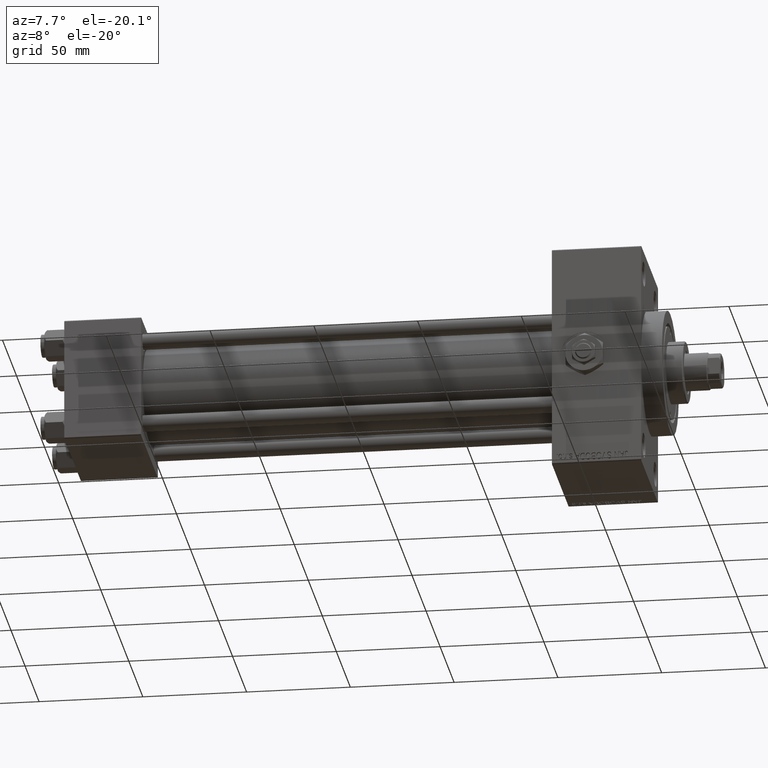
[diagram: clean part render]
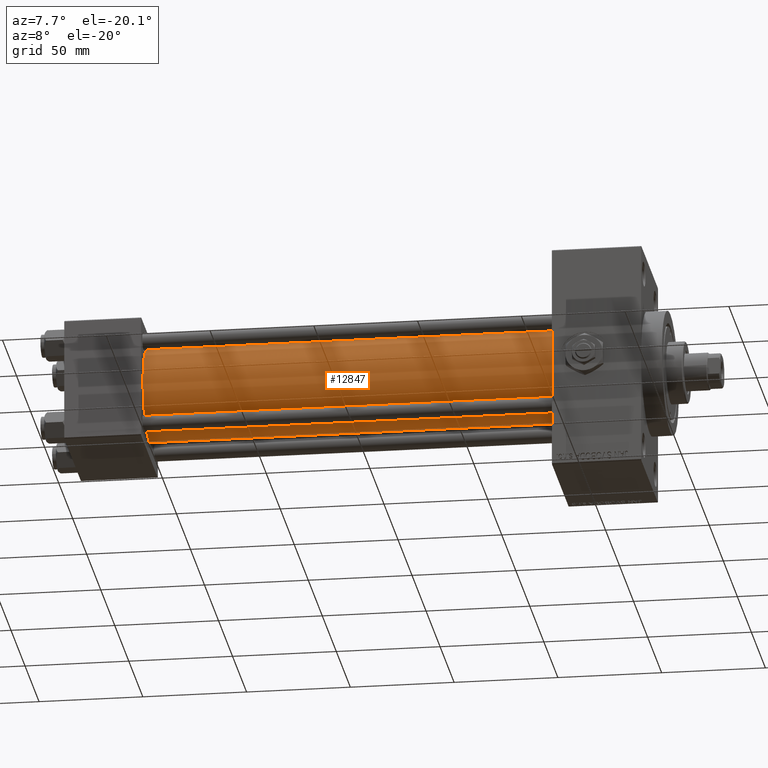
[diagram: same view with one face highlighted and labeled with its STEP entity id]
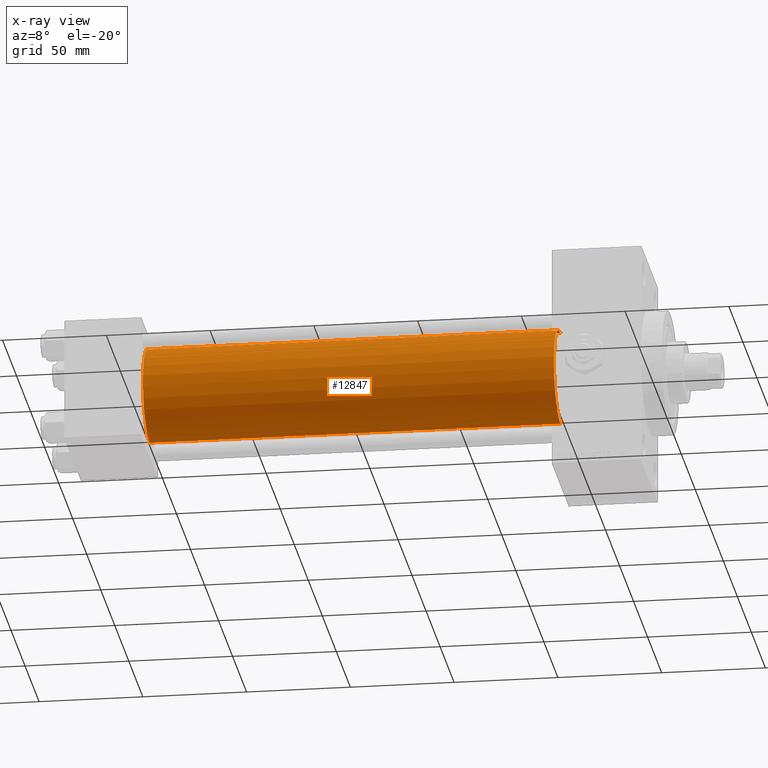
[diagram: x-ray of the same camera — body ghosted, the highlighted face saturated]
A machine part, auxiliary view. The second image highlights one B-rep face of the part: STEP entity #12847.
The next image is the same camera in x-ray: the body ghosted, the highlighted face saturated — about 0% of this face is hidden behind the body in this view.
In plain terms, the highlighted cylindrical surface (partial cylindrical patch) has radius 23 mm, axis along (-1, -0, -0).
Its self-contained STEP definition (entity closure, byte-faithful):
#519 = CARTESIAN_POINT ( 'NONE',  ( 235.0000000000000284, -2.602085213965210642E-15, 23.00000000000000000 ) ) ;
#593 = VECTOR ( 'NONE', #25372, 1000.000000000000000 ) ;
#876 = CARTESIAN_POINT ( 'NONE',  ( 235.0000000000000284, -2.602085213965210642E-15, 23.00000000000000000 ) ) ;
#2454 = EDGE_LOOP ( 'NONE', ( #13700, #19755, #20214, #27424 ) ) ;
#5916 = EDGE_CURVE ( 'NONE', #40469, #31014, #46267, .T. ) ;
#7460 = CIRCLE ( 'NONE', #27302, 23.00000000000000000 ) ;
#12847 = ADVANCED_FACE ( 'NONE', ( #43848 ), #13517, .T. ) ;
#13467 = VERTEX_POINT ( 'NONE', #41240 ) ;
#13517 = CYLINDRICAL_SURFACE ( 'NONE', #37914, 23.00000000000000000 ) ;
#13700 = ORIENTED_EDGE ( 'NONE', *, *, #16159, .F. ) ;
#15921 = CARTESIAN_POINT ( 'NONE',  ( 235.0000000000000284, -2.602085213965210642E-15, 0.000000000000000000 ) ) ;
#16159 = EDGE_CURVE ( 'NONE', #13467, #34878, #41646, .T. ) ;
#16235 = CARTESIAN_POINT ( 'NONE',  ( 37.00000000000000711, -2.602085213965210642E-15, 0.000000000000000000 ) ) ;
#17611 = CARTESIAN_POINT ( 'NONE',  ( 37.00000000000000711, -2.602085213965210642E-15, 23.00000000000000000 ) ) ;
#17733 = CARTESIAN_POINT ( 'NONE',  ( 235.0000000000000284, -2.602085213965210642E-15, 0.000000000000000000 ) ) ;
#19180 = DIRECTION ( 'NONE',  ( -1.000000000000000000, -0.000000000000000000, -0.000000000000000000 ) ) ;
#19755 = ORIENTED_EDGE ( 'NONE', *, *, #48227, .F. ) ;
#19987 = AXIS2_PLACEMENT_3D ( 'NONE', #16235, #31401, #46335 ) ;
#20214 = ORIENTED_EDGE ( 'NONE', *, *, #5916, .T. ) ;
#22653 = DIRECTION ( 'NONE',  ( 1.000000000000000000, 0.000000000000000000, 0.000000000000000000 ) ) ;
#22731 = CARTESIAN_POINT ( 'NONE',  ( 235.0000000000000284, 2.146024240737016609E-16, -23.00000000000000000 ) ) ;
#25372 = DIRECTION ( 'NONE',  ( -1.000000000000000000, -0.000000000000000000, -0.000000000000000000 ) ) ;
#27302 = AXIS2_PLACEMENT_3D ( 'NONE', #15921, #22653, #31083 ) ;
#27424 = ORIENTED_EDGE ( 'NONE', *, *, #41567, .T. ) ;
#29240 = CARTESIAN_POINT ( 'NONE',  ( 37.00000000000000711, 2.146024240737016609E-16, -23.00000000000000000 ) ) ;
#31014 = VERTEX_POINT ( 'NONE', #17611 ) ;
#31083 = DIRECTION ( 'NONE',  ( 0.000000000000000000, 0.000000000000000000, -1.000000000000000000 ) ) ;
#31401 = DIRECTION ( 'NONE',  ( 1.000000000000000000, -0.000000000000000000, 0.000000000000000000 ) ) ;
#32128 = VECTOR ( 'NONE', #19180, 1000.000000000000000 ) ;
#33146 = DIRECTION ( 'NONE',  ( -1.000000000000000000, -0.000000000000000000, -0.000000000000000000 ) ) ;
#34878 = VERTEX_POINT ( 'NONE', #29240 ) ;
#36375 = DIRECTION ( 'NONE',  ( 0.000000000000000000, 0.000000000000000000, 1.000000000000000000 ) ) ;
#37914 = AXIS2_PLACEMENT_3D ( 'NONE', #17733, #33146, #36375 ) ;
#40469 = VERTEX_POINT ( 'NONE', #876 ) ;
#41240 = CARTESIAN_POINT ( 'NONE',  ( 235.0000000000000284, 2.146024240737016609E-16, -23.00000000000000000 ) ) ;
#41459 = CIRCLE ( 'NONE', #19987, 23.00000000000000000 ) ;
#41567 = EDGE_CURVE ( 'NONE', #31014, #34878, #41459, .T. ) ;
#41646 = LINE ( 'NONE', #22731, #593 ) ;
#43848 = FACE_OUTER_BOUND ( 'NONE', #2454, .T. ) ;
#46267 = LINE ( 'NONE', #519, #32128 ) ;
#46335 = DIRECTION ( 'NONE',  ( 0.000000000000000000, 0.000000000000000000, 1.000000000000000000 ) ) ;
#48227 = EDGE_CURVE ( 'NONE', #40469, #13467, #7460, .T. ) ;